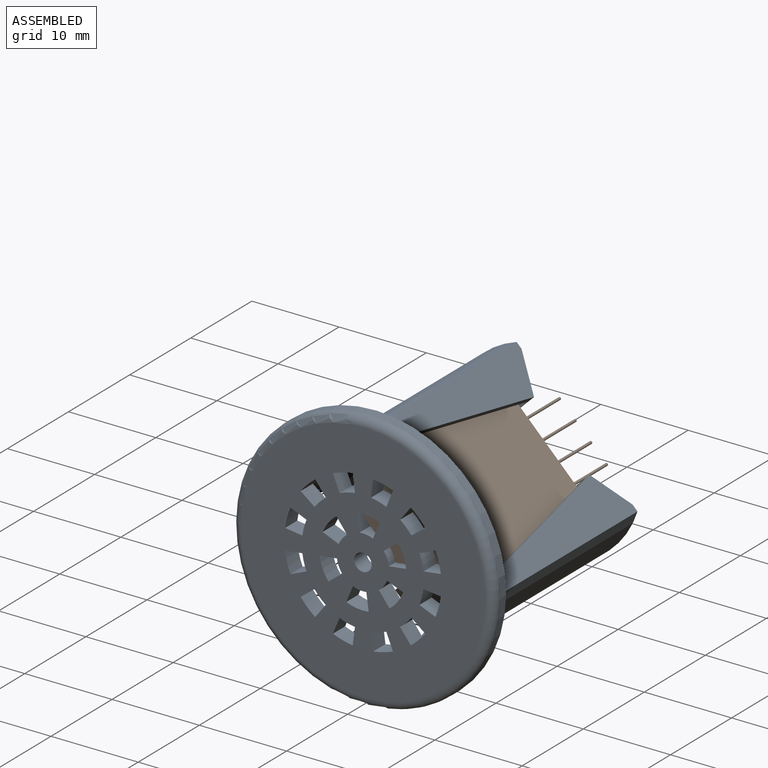
[diagram: assembled view]
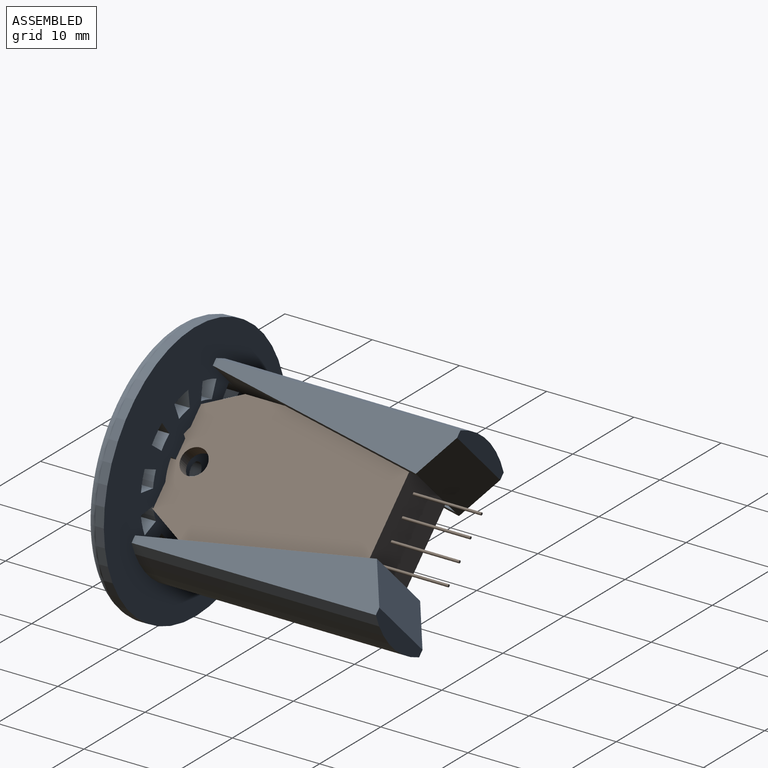
[diagram: assembled view, second angle]
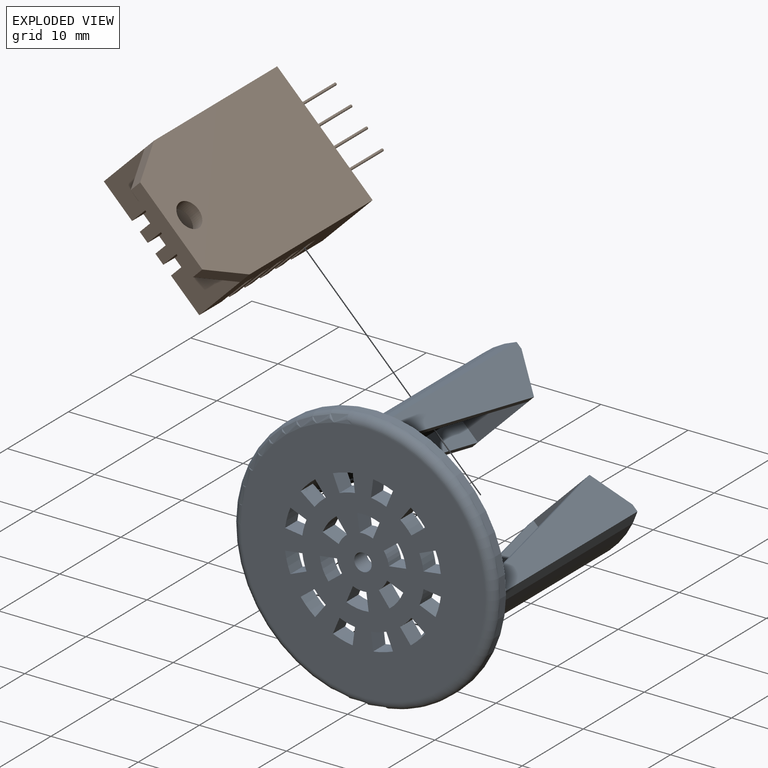
[diagram: exploded view]
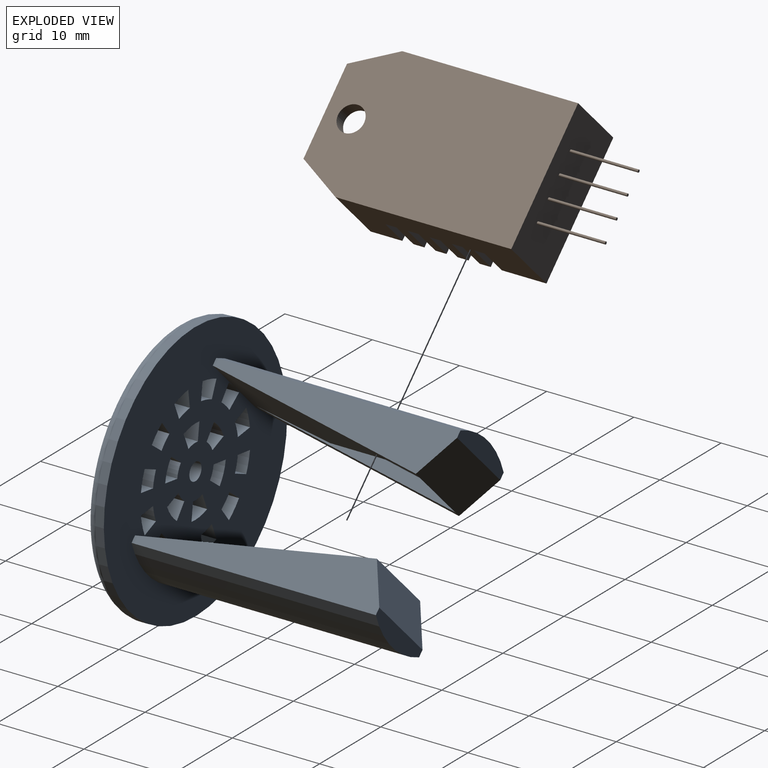
[diagram: exploded view, second angle]
ASSEMBLY  parts=2 mates=2
PART A: 101 faces, bbox 32.5x32.5x30 mm
  f0: plane 9.69x7.42mm, normal (0.6,0.78,-0.15), area 80.4mm2, adj f1,f6,f92,f99
  f1: plane 15.81x6.51mm, normal (0.61,0.79,0), area 129.7mm2, adj f0,f2,f92,f99
  f2: plane 8.33x7.37mm, normal (0,0,-1), area 24.6mm2, adj f1,f90,f92,f99
  f3: plane 9.69x7.42mm, normal (-0.6,-0.78,-0.15), area 80.4mm2, adj f4,f6,f95,f97
  f4: plane 15.81x6.51mm, normal (-0.61,-0.79,0), area 129.7mm2, adj f3,f5,f95,f97
  f5: plane 8.33x7.37mm, normal (0,0,-1), area 24.6mm2, adj f4,f91,f95,f97
  f6: plane 30x30mm, normal (0,0,1), area 596.1mm2, adj f0,f3,f7,f8,f9,f10,f11,f12
  f7: cylinder r=7mm len=2mm, axis (0,0,-1), area 3.7mm2, adj f6,f8,f61,f81
  f8: plane 2x1.73mm, normal (0.5,0.87,0), area 4mm2, adj f6,f7,f9,f81
  f9: cylinder r=9mm len=2mm, axis (0,0,-1), area 4.7mm2, adj f6,f8,f61,f81
  f10: cylinder r=7mm len=2mm, axis (0,0,-1), area 3.7mm2, adj f6,f11,f62,f81
  f11: plane 2x1.73mm, normal (0.87,0.5,0), area 4mm2, adj f6,f10,f12,f81
  f12: cylinder r=9mm len=2.17mm, axis (0,0,-1), area 4.7mm2, adj f6,f11,f62,f81
  f13: cylinder r=7mm len=2mm, axis (0,0,-1), area 3.7mm2, adj f6,f14,f63,f81
  f14: plane 2x2mm, normal (1,0,0), area 4mm2, adj f6,f13,f15,f81
  f15: cylinder r=9mm len=2.33mm, axis (0,0,-1), area 4.7mm2, adj f6,f14,f63,f81
  f16: cylinder r=7mm len=2mm, axis (0,0,-1), area 3.7mm2, adj f6,f17,f64,f81
  f17: plane 2x1.73mm, normal (0.87,-0.5,0), area 4mm2, adj f6,f16,f18,f81
  f18: cylinder r=9mm len=2mm, axis (0,0,-1), area 4.7mm2, adj f6,f17,f64,f81
  f19: cylinder r=7mm len=2mm, axis (0,0,-1), area 3.7mm2, adj f6,f20,f65,f81
  f20: plane 2x1.73mm, normal (0.5,-0.87,0), area 4mm2, adj f6,f19,f21,f81
  f21: cylinder r=9mm len=2.17mm, axis (0,0,-1), area 4.7mm2, adj f6,f20,f65,f81
  f22: cylinder r=7mm len=2mm, axis (0,0,-1), area 3.7mm2, adj f6,f23,f66,f81
  f23: plane 2x2mm, normal (0,-1,0), area 4mm2, adj f6,f22,f24,f81
  f24: cylinder r=9mm len=2.33mm, axis (0,0,-1), area 4.7mm2, adj f6,f23,f66,f81
  f25: cylinder r=7mm len=2mm, axis (0,0,-1), area 3.7mm2, adj f6,f26,f67,f81
  f26: plane 2x1.73mm, normal (-0.5,-0.87,0), area 4mm2, adj f6,f25,f27,f81
  f27: cylinder r=9mm len=2mm, axis (0,0,-1), area 4.7mm2, adj f6,f26,f67,f81
  f28: cylinder r=7mm len=2mm, axis (0,0,-1), area 3.7mm2, adj f6,f29,f68,f81
  f29: plane 2x1.73mm, normal (-0.87,-0.5,0), area 4mm2, adj f6,f28,f30,f81
  f30: cylinder r=9mm len=2.17mm, axis (0,0,-1), area 4.7mm2, adj f6,f29,f68,f81
  f31: cylinder r=7mm len=2mm, axis (0,0,-1), area 3.7mm2, adj f6,f32,f69,f81
  f32: plane 2x2mm, normal (-1,0,0), area 4mm2, adj f6,f31,f33,f81
  f33: cylinder r=9mm len=2.33mm, axis (0,0,-1), area 4.7mm2, adj f6,f32,f69,f81
  f34: cylinder r=7mm len=2mm, axis (0,0,-1), area 3.7mm2, adj f6,f35,f70,f81
  f35: plane 2x1.73mm, normal (-0.87,0.5,0), area 4mm2, adj f6,f34,f36,f81
  f36: cylinder r=9mm len=2mm, axis (0,0,-1), area 4.7mm2, adj f6,f35,f70,f81
  f37: cylinder r=7mm len=2mm, axis (0,0,-1), area 3.7mm2, adj f6,f38,f71,f81
  f38: plane 2x1.73mm, normal (-0.5,0.87,0), area 4mm2, adj f6,f37,f39,f81
  f39: cylinder r=9mm len=2.17mm, axis (0,0,-1), area 4.7mm2, adj f6,f38,f71,f81
  f40: plane 2x1.93mm, normal (-0.26,-0.97,0), area 4mm2, adj f6,f41,f72,f81
  f41: cylinder r=7mm len=2mm, axis (0,0,-1), area 3.7mm2, adj f6,f40,f42,f81
  f42: plane 2x2mm, normal (0,1,0), area 4mm2, adj f6,f41,f72,f81
  f43: plane 2x2mm, normal (0,1,0), area 4mm2, adj f6,f44,f73,f81
  f44: cylinder r=5mm len=2.5mm, axis (0,0,-1), area 5.2mm2, adj f6,f43,f45,f81
  f45: plane 2x1.73mm, normal (-0.5,-0.87,0), area 4mm2, adj f6,f44,f73,f81
  f46: plane 2x1.73mm, normal (-0.87,0.5,0), area 4mm2, adj f6,f47,f74,f81
  f47: cylinder r=5mm len=2mm, axis (0,0,-1), area 5.2mm2, adj f6,f46,f48,f81
  f48: plane 2x1.73mm, normal (0.5,-0.87,0), area 4mm2, adj f6,f47,f74,f81
  f49: plane 2x1.73mm, normal (-0.87,-0.5,0), area 4mm2, adj f6,f50,f75,f81
  f50: cylinder r=5mm len=2.5mm, axis (0,0,-1), area 5.2mm2, adj f6,f49,f51,f81
  f51: plane 2x2mm, normal (1,0,0), area 4mm2, adj f6,f50,f75,f81
  f52: plane 2x2mm, normal (0,-1,0), area 4mm2, adj f6,f53,f76,f81
  f53: cylinder r=5mm len=2.5mm, axis (0,0,-1), area 5.2mm2, adj f6,f52,f54,f81
  f54: plane 2x1.73mm, normal (0.5,0.87,0), area 4mm2, adj f6,f53,f76,f81
  f55: plane 2x1.73mm, normal (0.87,-0.5,0), area 4mm2, adj f6,f56,f77,f81
  f56: cylinder r=5mm len=2mm, axis (0,0,-1), area 5.2mm2, adj f6,f55,f57,f81
  f57: plane 2x1.73mm, normal (-0.5,0.87,0), area 4mm2, adj f6,f56,f77,f81
  f58: plane 2x1.73mm, normal (0.87,0.5,0), area 4mm2, adj f6,f59,f78,f81
  f59: cylinder r=5mm len=2.5mm, axis (0,0,-1), area 5.2mm2, adj f6,f58,f60,f81
  f60: plane 2x2mm, normal (-1,0,0), area 4mm2, adj f6,f59,f78,f81
  f61: plane 2x1.41mm, normal (-0.71,-0.71,0), area 4mm2, adj f6,f7,f9,f81
  f62: plane 2x1.93mm, normal (-0.97,-0.26,0), area 4mm2, adj f6,f10,f12,f81
  f63: plane 2x1.93mm, normal (-0.97,0.26,0), area 4mm2, adj f6,f13,f15,f81
  f64: plane 2x1.41mm, normal (-0.71,0.71,0), area 4mm2, adj f6,f16,f18,f81
  f65: plane 2x1.93mm, normal (-0.26,0.97,0), area 4mm2, adj f6,f19,f21,f81
  f66: plane 2x1.93mm, normal (0.26,0.97,0), area 4mm2, adj f6,f22,f24,f81
  f67: plane 2x1.41mm, normal (0.71,0.71,0), area 4mm2, adj f6,f25,f27,f81
  f68: plane 2x1.93mm, normal (0.97,0.26,0), area 4mm2, adj f6,f28,f30,f81
  f69: plane 2x1.93mm, normal (0.97,-0.26,0), area 4mm2, adj f6,f31,f33,f81
  f70: plane 2x1.41mm, normal (0.71,-0.71,0), area 4mm2, adj f6,f34,f36,f81
  f71: plane 2x1.93mm, normal (0.26,-0.97,0), area 4mm2, adj f6,f37,f39,f81
  f72: cylinder r=9mm len=2.33mm, axis (0,0,-1), area 4.7mm2, adj f6,f40,f42,f81
  f73: cylinder r=3mm len=2mm, axis (0,0,-1), area 3.1mm2, adj f6,f43,f45,f81
  f74: cylinder r=3mm len=2mm, axis (0,0,-1), area 3.1mm2, adj f6,f46,f48,f81
  f75: cylinder r=3mm len=2mm, axis (0,0,-1), area 3.1mm2, adj f6,f49,f51,f81
  f76: cylinder r=3mm len=2mm, axis (0,0,-1), area 3.1mm2, adj f6,f52,f54,f81
  f77: cylinder r=3mm len=2mm, axis (0,0,-1), area 3.1mm2, adj f6,f55,f57,f81
  f78: cylinder r=3mm len=2mm, axis (0,0,-1), area 3.1mm2, adj f6,f58,f60,f81
  f79: cylinder r=1mm len=2mm, axis (0,0,-1), area 12.6mm2, adj f6,f81
  f80: cylinder r=15mm len=30mm, axis (0,0,-1), area 94.2mm2, adj f6,f100
  f81: plane 28x28mm, normal (0,0,-1), area 537.2mm2, adj f7,f8,f9,f10,f11,f12,f13,f14
  f82: plane 28x4.2mm, normal (-0.79,0.61,0), area 85.3mm2, adj f6,f84,f85,f91,f96
  f83: plane 28x4.2mm, normal (0.79,-0.61,0), area 85.3mm2, adj f6,f84,f85,f91,f94
  f84: cylinder r=11mm len=28mm, axis (0,0,-1), area 290.7mm2, adj f6,f82,f83,f85
  f85: plane 8.42x6.72mm, normal (0,0,1), area 16.1mm2, adj f82,f83,f84,f91
  f86: plane 28x4.2mm, normal (-0.79,0.61,0), area 85.3mm2, adj f6,f87,f89,f90,f98
  f87: cylinder r=11mm len=28mm, axis (0,0,-1), area 290.7mm2, adj f6,f86,f88,f89
  f88: plane 28x4.2mm, normal (0.79,-0.61,0), area 85.3mm2, adj f6,f87,f89,f90,f93
  f89: plane 8.42x6.72mm, normal (0,0,1), area 16.1mm2, adj f86,f87,f88,f90
  f90: plane 10.67x9.66mm, normal (0.3,0.39,0.87), area 51.5mm2, adj f2,f86,f88,f89,f93,f98
  f91: plane 10.67x9.66mm, normal (-0.3,-0.39,0.87), area 51.5mm2, adj f5,f82,f83,f85,f94,f96
  f92: plane 25.5x3.57mm, normal (-0.79,0.61,0), area 26.4mm2, adj f0,f1,f2,f93
  f93: plane 25.5x4.12mm, normal (0.6,0.78,-0.17), area 23.3mm2, adj f6,f88,f90,f92
  f94: plane 25.5x4.12mm, normal (-0.6,-0.78,-0.17), area 23.3mm2, adj f6,f83,f91,f95
  f95: plane 25.5x3.57mm, normal (-0.79,0.61,0), area 26.4mm2, adj f3,f4,f5,f94
  f96: plane 25.5x4.12mm, normal (-0.6,-0.78,-0.17), area 23.3mm2, adj f6,f82,f91,f97
  f97: plane 25.5x3.57mm, normal (0.79,-0.61,0), area 26.4mm2, adj f3,f4,f5,f96
  f98: plane 25.5x4.12mm, normal (0.6,0.78,-0.17), area 23.3mm2, adj f6,f86,f90,f99
  f99: plane 25.5x3.57mm, normal (0.79,-0.61,0), area 26.4mm2, adj f0,f1,f2,f98
  f100: torus R=14mm, axis (0,0,1), area 144.5mm2, adj f80,f81
PART B: 137 faces, bbox 8.2x33x15.5 mm
  f0: plane 17.59x12.91mm, normal (-1,0,0), area 175.6mm2, adj f2,f4,f6,f8,f11,f12,f13,f22
  f1: plane 20.15x15.47mm, normal (1,0,0), area 239.3mm2, adj f3,f5,f7,f11,f12,f13,f14,f22
  f2: plane 17.59x5.59mm, normal (0,0,-1), area 81.4mm2, adj f0,f6,f8,f9,f50,f51,f52,f54
  f3: plane 20.15x8.15mm, normal (0,0,1), area 139.2mm2, adj f1,f7,f14,f15,f17,f50,f51,f52
  f4: plane 17.59x5.59mm, normal (0,0,1), area 81.4mm2, adj f0,f6,f8,f9,f30,f31,f32,f34
  f5: plane 20.15x8.15mm, normal (0,0,-1), area 139.2mm2, adj f1,f7,f14,f15,f19,f30,f31,f32
  f6: plane 12.91x5.59mm, normal (0,-1,0), area 62.1mm2, adj f0,f2,f4,f9,f10,f11,f13,f21
  f7: plane 15.47x6.63mm, normal (0,1,0), area 87.7mm2, adj f1,f3,f5,f10,f11,f13,f20,f21
  f8: plane 12.91x5.59mm, normal (0,1,0), area 72.2mm2, adj f0,f2,f4,f9
  f9: plane 17.59x12.91mm, normal (1,0,0), area 227.1mm2, adj f2,f4,f6,f8
  f10: plane 1.28x1.25mm, normal (1,0,0), area 1.6mm2, adj f6,f7,f11,f13
  f11: plane 3.96x1.87mm, normal (0,0,1), area 5.8mm2, adj f0,f1,f6,f7,f10,f12
  f12: plane 1.28x1.25mm, normal (0,1,0), area 1.6mm2, adj f0,f1,f11,f13
  f13: plane 3.96x1.87mm, normal (0,0,-1), area 5.8mm2, adj f0,f1,f6,f7,f10,f12
  f14: plane 15.47x8.15mm, normal (0,-1,0), area 125.8mm2, adj f1,f3,f5,f15,f129,f131,f133,f135
  f15: plane 25.15x15.47mm, normal (-1,0,0), area 368.5mm2, adj f3,f5,f14,f16,f17,f18,f19
  f16: plane 10.07x1.52mm, normal (0,1,0), area 15.3mm2, adj f15,f17,f19,f20
  f17: plane 5x2.7mm, normal (0,0.48,0.88), area 8.6mm2, adj f3,f15,f16,f20
  f18: cylinder r=1.5mm len=3mm, axis (-1,0,0), area 14.3mm2, adj f15,f20
  f19: plane 5x2.7mm, normal (0,0.48,-0.88), area 8.6mm2, adj f5,f15,f16,f20
  f20: plane 15.47x5mm, normal (1,0,0), area 56.8mm2, adj f7,f16,f17,f18,f19
  f21: plane 1.28x1.25mm, normal (1,0,0), area 1.6mm2, adj f6,f7,f22,f24
  f22: plane 3.96x1.87mm, normal (0,0,1), area 5.8mm2, adj f0,f1,f6,f7,f21,f23
  f23: plane 1.28x1.25mm, normal (0,1,0), area 1.6mm2, adj f0,f1,f22,f24
  f24: plane 3.96x1.87mm, normal (0,0,-1), area 5.8mm2, adj f0,f1,f6,f7,f21,f23
  f25: plane 1.28x1.26mm, normal (0,0,-1), area 1.6mm2, adj f0,f1,f26,f28
  f26: plane 1.28x1.25mm, normal (0,-1,0), area 1.6mm2, adj f0,f1,f25,f27
  f27: plane 1.28x1.26mm, normal (0,0,1), area 1.6mm2, adj f0,f1,f26,f28
  f28: plane 1.28x1.25mm, normal (0,1,0), area 1.6mm2, adj f0,f1,f25,f27
  f29: plane 1.28x1.26mm, normal (0,0,-1), area 1.6mm2, adj f0,f1,f30,f31
  f30: plane 3.96x3.3mm, normal (0,1,0), area 7.7mm2, adj f0,f1,f4,f5,f29,f32
  f31: plane 3.96x3.3mm, normal (0,-1,0), area 7.7mm2, adj f0,f1,f4,f5,f29,f32
  f32: plane 1.28x1.26mm, normal (1,0,0), area 1.6mm2, adj f4,f5,f30,f31
  f33: plane 1.28x1.26mm, normal (0,0,-1), area 1.6mm2, adj f0,f1,f34,f35
  f34: plane 3.96x3.3mm, normal (0,1,0), area 7.7mm2, adj f0,f1,f4,f5,f33,f36
  f35: plane 3.96x3.3mm, normal (0,-1,0), area 7.7mm2, adj f0,f1,f4,f5,f33,f36
  f36: plane 1.28x1.26mm, normal (1,0,0), area 1.6mm2, adj f4,f5,f34,f35
  f37: plane 1.28x1.26mm, normal (0,0,-1), area 1.6mm2, adj f0,f1,f38,f40
  f38: plane 1.28x1.25mm, normal (0,-1,0), area 1.6mm2, adj f0,f1,f37,f39
  f39: plane 1.28x1.26mm, normal (0,0,1), area 1.6mm2, adj f0,f1,f38,f40
  f40: plane 1.28x1.25mm, normal (0,1,0), area 1.6mm2, adj f0,f1,f37,f39
  f41: plane 1.28x1.26mm, normal (0,0,-1), area 1.6mm2, adj f0,f1,f42,f44
  f42: plane 1.28x1.25mm, normal (0,-1,0), area 1.6mm2, adj f0,f1,f41,f43
  f43: plane 1.28x1.26mm, normal (0,0,1), area 1.6mm2, adj f0,f1,f42,f44
  f44: plane 1.28x1.25mm, normal (0,1,0), area 1.6mm2, adj f0,f1,f41,f43
  f45: plane 1.28x1.25mm, normal (0,1,0), area 1.6mm2, adj f0,f1,f46,f48
  f46: plane 1.28x1.26mm, normal (0,0,-1), area 1.6mm2, adj f0,f1,f45,f47
  f47: plane 1.28x1.25mm, normal (0,-1,0), area 1.6mm2, adj f0,f1,f46,f48
  f48: plane 1.28x1.26mm, normal (0,0,1), area 1.6mm2, adj f0,f1,f45,f47
  f49: plane 1.28x1.26mm, normal (0,0,1), area 1.6mm2, adj f0,f1,f50,f51
  f50: plane 3.96x3.3mm, normal (0,-1,0), area 7.7mm2, adj f0,f1,f2,f3,f49,f52
  f51: plane 3.96x3.3mm, normal (0,1,0), area 7.7mm2, adj f0,f1,f2,f3,f49,f52
  f52: plane 1.28x1.26mm, normal (1,0,0), area 1.6mm2, adj f2,f3,f50,f51
  f53: plane 1.28x1.26mm, normal (0,0,1), area 1.6mm2, adj f0,f1,f54,f55
  f54: plane 3.96x3.3mm, normal (0,-1,0), area 7.7mm2, adj f0,f1,f2,f3,f53,f56
  f55: plane 3.96x3.3mm, normal (0,1,0), area 7.7mm2, adj f0,f1,f2,f3,f53,f56
  f56: plane 1.28x1.26mm, normal (1,0,0), area 1.6mm2, adj f2,f3,f54,f55
  f57: plane 1.28x1.26mm, normal (0,0,1), area 1.6mm2, adj f0,f1,f58,f59
  f58: plane 3.96x3.3mm, normal (0,-1,0), area 7.7mm2, adj f0,f1,f2,f3,f57,f60
  f59: plane 3.96x3.3mm, normal (0,1,0), area 7.7mm2, adj f0,f1,f2,f3,f57,f60
  f60: plane 1.28x1.26mm, normal (1,0,0), area 1.6mm2, adj f2,f3,f58,f59
  f61: plane 1.28x1.26mm, normal (0,0,1), area 1.6mm2, adj f0,f1,f62,f63
  f62: plane 3.96x3.3mm, normal (0,-1,0), area 7.7mm2, adj f0,f1,f2,f3,f61,f64
  f63: plane 3.96x3.3mm, normal (0,1,0), area 7.7mm2, adj f0,f1,f2,f3,f61,f64
  f64: plane 1.28x1.26mm, normal (1,0,0), area 1.6mm2, adj f2,f3,f62,f63
  f65: plane 1.28x1.26mm, normal (0,0,-1), area 1.6mm2, adj f0,f1,f66,f68
  f66: plane 1.28x1.25mm, normal (0,-1,0), area 1.6mm2, adj f0,f1,f65,f67
  f67: plane 1.28x1.26mm, normal (0,0,1), area 1.6mm2, adj f0,f1,f66,f68
  f68: plane 1.28x1.25mm, normal (0,1,0), area 1.6mm2, adj f0,f1,f65,f67
  f69: plane 1.28x1.26mm, normal (0,0,-1), area 1.6mm2, adj f0,f1,f70,f72
  f70: plane 1.28x1.25mm, normal (0,-1,0), area 1.6mm2, adj f0,f1,f69,f71
  f71: plane 1.28x1.26mm, normal (0,0,1), area 1.6mm2, adj f0,f1,f70,f72
  f72: plane 1.28x1.25mm, normal (0,1,0), area 1.6mm2, adj f0,f1,f69,f71
  f73: plane 1.28x1.26mm, normal (0,0,-1), area 1.6mm2, adj f0,f1,f74,f76
  f74: plane 1.28x1.25mm, normal (0,-1,0), area 1.6mm2, adj f0,f1,f73,f75
  f75: plane 1.28x1.26mm, normal (0,0,1), area 1.6mm2, adj f0,f1,f74,f76
  f76: plane 1.28x1.25mm, normal (0,1,0), area 1.6mm2, adj f0,f1,f73,f75
  f77: plane 1.28x1.26mm, normal (0,0,-1), area 1.6mm2, adj f0,f1,f78,f79
  f78: plane 3.96x3.3mm, normal (0,1,0), area 7.7mm2, adj f0,f1,f4,f5,f77,f80
  f79: plane 3.96x3.3mm, normal (0,-1,0), area 7.7mm2, adj f0,f1,f4,f5,f77,f80
  f80: plane 1.28x1.26mm, normal (1,0,0), area 1.6mm2, adj f4,f5,f78,f79
  f81: plane 1.28x1.26mm, normal (0,0,-1), area 1.6mm2, adj f0,f1,f82,f83
  f82: plane 3.96x3.3mm, normal (0,1,0), area 7.7mm2, adj f0,f1,f4,f5,f81,f84
  f83: plane 3.96x3.3mm, normal (0,-1,0), area 7.7mm2, adj f0,f1,f4,f5,f81,f84
  f84: plane 1.28x1.26mm, normal (1,0,0), area 1.6mm2, adj f4,f5,f82,f83
  f85: plane 1.28x1.26mm, normal (0,0,-1), area 1.6mm2, adj f0,f1,f86,f88
  f86: plane 1.28x1.25mm, normal (0,-1,0), area 1.6mm2, adj f0,f1,f85,f87
  f87: plane 1.28x1.26mm, normal (0,0,1), area 1.6mm2, adj f0,f1,f86,f88
  f88: plane 1.28x1.25mm, normal (0,1,0), area 1.6mm2, adj f0,f1,f85,f87
  f89: plane 1.28x1.26mm, normal (0,0,-1), area 1.6mm2, adj f0,f1,f90,f92
  f90: plane 1.28x1.25mm, normal (0,-1,0), area 1.6mm2, adj f0,f1,f89,f91
  f91: plane 1.28x1.26mm, normal (0,0,1), area 1.6mm2, adj f0,f1,f90,f92
  f92: plane 1.28x1.25mm, normal (0,1,0), area 1.6mm2, adj f0,f1,f89,f91
  f93: plane 1.28x1.26mm, normal (0,0,-1), area 1.6mm2, adj f0,f1,f94,f96
  f94: plane 1.28x1.25mm, normal (0,-1,0), area 1.6mm2, adj f0,f1,f93,f95
  f95: plane 1.28x1.26mm, normal (0,0,1), area 1.6mm2, adj f0,f1,f94,f96
  f96: plane 1.28x1.25mm, normal (0,1,0), area 1.6mm2, adj f0,f1,f93,f95
  f97: plane 1.28x1.26mm, normal (0,0,-1), area 1.6mm2, adj f0,f1,f98,f99
  f98: plane 3.96x3.3mm, normal (0,1,0), area 7.7mm2, adj f0,f1,f4,f5,f97,f100
  f99: plane 3.96x3.3mm, normal (0,-1,0), area 7.7mm2, adj f0,f1,f4,f5,f97,f100
  f100: plane 1.28x1.26mm, normal (1,0,0), area 1.6mm2, adj f4,f5,f98,f99
  f101: plane 1.28x1.26mm, normal (0,0,-1), area 1.6mm2, adj f0,f1,f102,f104
  f102: plane 1.28x1.25mm, normal (0,-1,0), area 1.6mm2, adj f0,f1,f101,f103
  f103: plane 1.28x1.26mm, normal (0,0,1), area 1.6mm2, adj f0,f1,f102,f104
  f104: plane 1.28x1.25mm, normal (0,1,0), area 1.6mm2, adj f0,f1,f101,f103
  f105: plane 1.28x1.26mm, normal (0,0,-1), area 1.6mm2, adj f0,f1,f106,f108
  f106: plane 1.28x1.25mm, normal (0,-1,0), area 1.6mm2, adj f0,f1,f105,f107
  f107: plane 1.28x1.26mm, normal (0,0,1), area 1.6mm2, adj f0,f1,f106,f108
  f108: plane 1.28x1.25mm, normal (0,1,0), area 1.6mm2, adj f0,f1,f105,f107
  f109: plane 1.28x1.26mm, normal (0,0,1), area 1.6mm2, adj f0,f1,f110,f111
  f110: plane 3.96x3.3mm, normal (0,-1,0), area 7.7mm2, adj f0,f1,f2,f3,f109,f112
  f111: plane 3.96x3.3mm, normal (0,1,0), area 7.7mm2, adj f0,f1,f2,f3,f109,f112
  f112: plane 1.28x1.26mm, normal (1,0,0), area 1.6mm2, adj f2,f3,f110,f111
  f113: plane 1.28x1.25mm, normal (0,1,0), area 1.6mm2, adj f0,f1,f114,f115
  f114: plane 3.96x1.87mm, normal (0,0,-1), area 5.8mm2, adj f0,f1,f6,f7,f113,f116
  f115: plane 3.96x1.87mm, normal (0,0,1), area 5.8mm2, adj f0,f1,f6,f7,f113,f116
  f116: plane 1.28x1.25mm, normal (1,0,0), area 1.6mm2, adj f6,f7,f114,f115
  f117: plane 1.28x1.25mm, normal (0,1,0), area 1.6mm2, adj f0,f1,f118,f120
  f118: plane 1.28x1.26mm, normal (0,0,-1), area 1.6mm2, adj f0,f1,f117,f119
  f119: plane 1.28x1.25mm, normal (0,-1,0), area 1.6mm2, adj f0,f1,f118,f120
  f120: plane 1.28x1.26mm, normal (0,0,1), area 1.6mm2, adj f0,f1,f117,f119
  f121: plane 1.28x1.25mm, normal (0,1,0), area 1.6mm2, adj f0,f1,f122,f124
  f122: plane 1.28x1.26mm, normal (0,0,-1), area 1.6mm2, adj f0,f1,f121,f123
  f123: plane 1.28x1.25mm, normal (0,-1,0), area 1.6mm2, adj f0,f1,f122,f124
  f124: plane 1.28x1.26mm, normal (0,0,1), area 1.6mm2, adj f0,f1,f121,f123
  f125: plane 1.28x1.25mm, normal (0,1,0), area 1.6mm2, adj f0,f1,f126,f128
  f126: plane 1.28x1.26mm, normal (0,0,-1), area 1.6mm2, adj f0,f1,f125,f127
  f127: plane 1.28x1.25mm, normal (0,-1,0), area 1.6mm2, adj f0,f1,f126,f128
  f128: plane 1.28x1.26mm, normal (0,0,1), area 1.6mm2, adj f0,f1,f125,f127
  f129: cylinder r=0.15mm len=7.8mm, axis (0,1,0), area 7.4mm2, adj f14,f130
  f130: plane 0.3x0.3mm, normal (0,-1,0), area 0.1mm2, adj f129
  f131: cylinder r=0.15mm len=7.8mm, axis (0,1,0), area 7.4mm2, adj f14,f132
  f132: plane 0.3x0.3mm, normal (0,-1,0), area 0.1mm2, adj f131
  f133: cylinder r=0.15mm len=7.8mm, axis (0,1,0), area 7.4mm2, adj f14,f134
  f134: plane 0.3x0.3mm, normal (0,-1,0), area 0.1mm2, adj f133
  f135: cylinder r=0.15mm len=7.8mm, axis (0,1,0), area 7.4mm2, adj f14,f136
  f136: plane 0.3x0.3mm, normal (0,-1,0), area 0.1mm2, adj f135
PLACE A rot(axis=(-0.05,0.71,0.71),174.7deg) t=(1.28,10.67,-5.19)mm
PLACE B rot(axis=(-0.38,0,0.92),180deg) t=(4.31,24.25,-2.49)mm
MATE planar A.f4 <-> B.f3  axis (0.71,0,-0.71) through (-4.02,30.27,0.12)mm
MATE planar A.f92 <-> B.f1  axis (0.71,0,0.71) through (3.02,32.04,-12.72)mm
